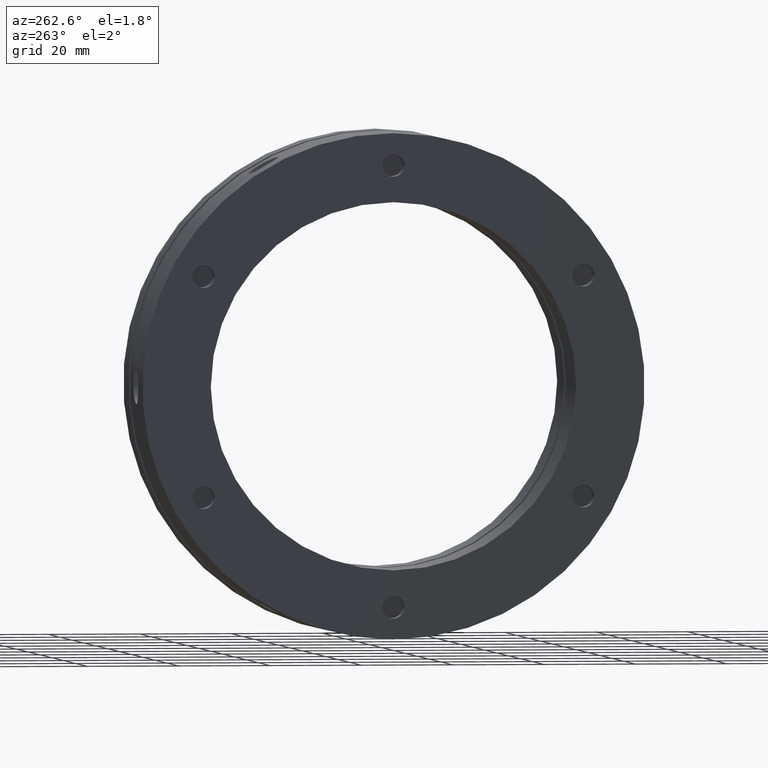
[diagram: clean part render]
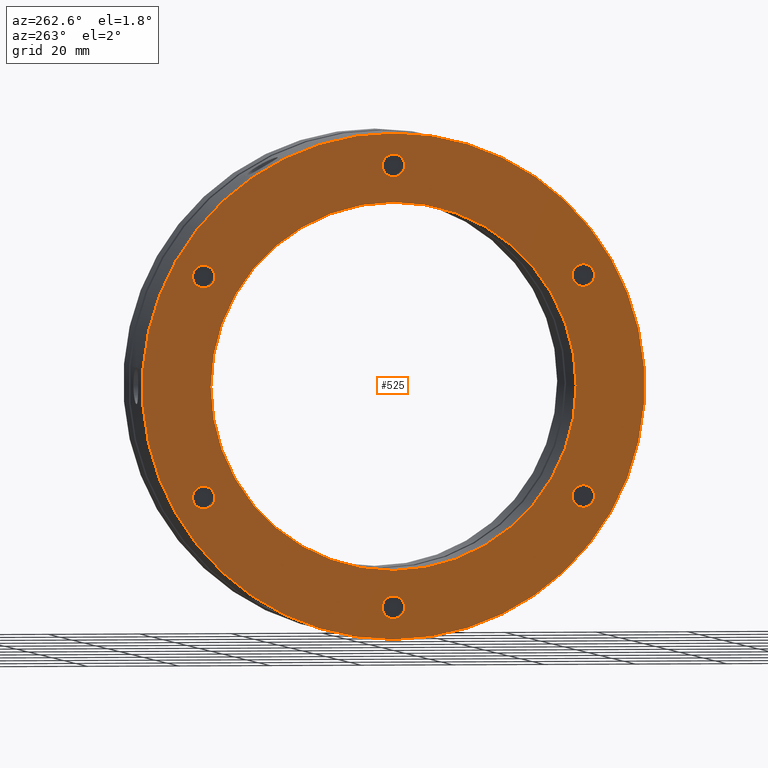
[diagram: same view with one face highlighted and labeled with its STEP entity id]
A machine part, auxiliary view. The second image highlights one B-rep face of the part: STEP entity #525.
In plain terms, the highlighted planar face has unit normal (-1, 0, 0).
Its self-contained STEP definition (entity closure, byte-faithful):
#6 = VERTEX_POINT ( 'NONE', #4715 ) ;
#7 = VERTEX_POINT ( 'NONE', #4704 ) ;
#10 = VERTEX_POINT ( 'NONE', #4707 ) ;
#12 = VERTEX_POINT ( 'NONE', #4722 ) ;
#13 = VERTEX_POINT ( 'NONE', #4702 ) ;
#17 = VERTEX_POINT ( 'NONE', #4698 ) ;
#19 = VERTEX_POINT ( 'NONE', #4699 ) ;
#26 = VERTEX_POINT ( 'NONE', #4708 ) ;
#28 = VERTEX_POINT ( 'NONE', #4713 ) ;
#32 = VERTEX_POINT ( 'NONE', #4729 ) ;
#37 = VERTEX_POINT ( 'NONE', #4734 ) ;
#40 = VERTEX_POINT ( 'NONE', #4737 ) ;
#51 = VERTEX_POINT ( 'NONE', #4748 ) ;
#57 = VERTEX_POINT ( 'NONE', #4753 ) ;
#63 = VERTEX_POINT ( 'NONE', #4759 ) ;
#66 = VERTEX_POINT ( 'NONE', #4762 ) ;
#222 = EDGE_CURVE ( 'NONE', #7, #6, #2558, .T. ) ;
#226 = EDGE_CURVE ( 'NONE', #13, #12, #2564, .T. ) ;
#234 = EDGE_CURVE ( 'NONE', #66, #63, #2574, .T. ) ;
#247 = EDGE_CURVE ( 'NONE', #37, #32, #2594, .T. ) ;
#291 = AXIS2_PLACEMENT_3D ( 'NONE', #3049, #3050, #3051 ) ;
#296 = AXIS2_PLACEMENT_3D ( 'NONE', #3020, #3021, #3022 ) ;
#300 = AXIS2_PLACEMENT_3D ( 'NONE', #2998, #2999, #3000 ) ;
#303 = AXIS2_PLACEMENT_3D ( 'NONE', #4803, #4514, #4512 ) ;
#319 = EDGE_CURVE ( 'NONE', #19, #17, #2668, .T. ) ;
#364 = EDGE_CURVE ( 'NONE', #57, #10, #2738, .T. ) ;
#370 = EDGE_CURVE ( 'NONE', #40, #28, #2743, .T. ) ;
#385 = EDGE_CURVE ( 'NONE', #51, #26, #2758, .T. ) ;
#386 = EDGE_CURVE ( 'NONE', #63, #66, #2752, .T. ) ;
#388 = EDGE_CURVE ( 'NONE', #32, #37, #2761, .T. ) ;
#389 = EDGE_CURVE ( 'NONE', #17, #19, #2762, .T. ) ;
#390 = EDGE_CURVE ( 'NONE', #12, #13, #2763, .T. ) ;
#391 = EDGE_CURVE ( 'NONE', #6, #7, #2764, .T. ) ;
#525 = ADVANCED_FACE ( 'NONE', ( #702, #706, #703, #697, #704, #707, #708, #709 ), #3888, .T. ) ;
#697 = FACE_BOUND ( 'NONE', #2389, .T. ) ;
#702 = FACE_BOUND ( 'NONE', #2385, .T. ) ;
#703 = FACE_BOUND ( 'NONE', #2388, .T. ) ;
#704 = FACE_BOUND ( 'NONE', #2390, .T. ) ;
#706 = FACE_BOUND ( 'NONE', #2391, .T. ) ;
#707 = FACE_BOUND ( 'NONE', #2384, .T. ) ;
#708 = FACE_BOUND ( 'NONE', #2383, .T. ) ;
#709 = FACE_OUTER_BOUND ( 'NONE', #2382, .T. ) ;
#977 = CIRCLE ( 'NONE', #4593, 55.00000000000000000 ) ;
#998 = CIRCLE ( 'NONE', #2997, 40.00000000000000000 ) ;
#1006 = CIRCLE ( 'NONE', #2994, 2.458500000000002600 ) ;
#1645 = CARTESIAN_POINT ( 'NONE',  ( -1.734723475976807100E-014, 0.0000000000000000000, 0.0000000000000000000 ) ) ;
#1646 = DIRECTION ( 'NONE',  ( 1.000000000000000000, 0.0000000000000000000, 0.0000000000000000000 ) ) ;
#1647 = DIRECTION ( 'NONE',  ( 0.0000000000000000000, 0.0000000000000000000, -1.000000000000000000 ) ) ;
#1809 = CARTESIAN_POINT ( 'NONE',  ( -1.040834085586084300E-014, 0.0000000000000000000, 0.0000000000000000000 ) ) ;
#1810 = DIRECTION ( 'NONE',  ( 1.000000000000000000, 0.0000000000000000000, 0.0000000000000000000 ) ) ;
#1811 = DIRECTION ( 'NONE',  ( 0.0000000000000000000, 0.0000000000000000000, -1.000000000000000000 ) ) ;
#1824 = CARTESIAN_POINT ( 'NONE',  ( -1.387778780781445700E-014, 0.0000000000000000000, 48.00000000000003600 ) ) ;
#1825 = DIRECTION ( 'NONE',  ( 1.000000000000000000, -0.0000000000000000000, -0.0000000000000000000 ) ) ;
#1826 = DIRECTION ( 'NONE',  ( 0.0000000000000000000, 0.0000000000000000000, 1.000000000000000000 ) ) ;
#2124 = ORIENTED_EDGE ( 'NONE', *, *, #364, .F. ) ;
#2125 = ORIENTED_EDGE ( 'NONE', *, *, #3416, .F. ) ;
#2126 = ORIENTED_EDGE ( 'NONE', *, *, #391, .T. ) ;
#2127 = ORIENTED_EDGE ( 'NONE', *, *, #222, .T. ) ;
#2128 = ORIENTED_EDGE ( 'NONE', *, *, #390, .T. ) ;
#2129 = ORIENTED_EDGE ( 'NONE', *, *, #226, .T. ) ;
#2131 = ORIENTED_EDGE ( 'NONE', *, *, #389, .T. ) ;
#2132 = ORIENTED_EDGE ( 'NONE', *, *, #319, .T. ) ;
#2133 = ORIENTED_EDGE ( 'NONE', *, *, #388, .T. ) ;
#2134 = ORIENTED_EDGE ( 'NONE', *, *, #247, .T. ) ;
#2135 = ORIENTED_EDGE ( 'NONE', *, *, #386, .T. ) ;
#2136 = ORIENTED_EDGE ( 'NONE', *, *, #234, .T. ) ;
#2137 = ORIENTED_EDGE ( 'NONE', *, *, #385, .T. ) ;
#2138 = ORIENTED_EDGE ( 'NONE', *, *, #3468, .T. ) ;
#2139 = ORIENTED_EDGE ( 'NONE', *, *, #3453, .T. ) ;
#2140 = ORIENTED_EDGE ( 'NONE', *, *, #370, .T. ) ;
#2208 = AXIS2_PLACEMENT_3D ( 'NONE', #3330, #3331, #3333 ) ;
#2215 = AXIS2_PLACEMENT_3D ( 'NONE', #3511, #3512, #3513 ) ;
#2255 = AXIS2_PLACEMENT_3D ( 'NONE', #3559, #3560, #3561 ) ;
#2256 = AXIS2_PLACEMENT_3D ( 'NONE', #3556, #3557, #3558 ) ;
#2269 = AXIS2_PLACEMENT_3D ( 'NONE', #3196, #3197, #3198 ) ;
#2382 = EDGE_LOOP ( 'NONE', ( #2125, #2124 ) ) ;
#2383 = EDGE_LOOP ( 'NONE', ( #2127, #2126 ) ) ;
#2384 = EDGE_LOOP ( 'NONE', ( #2129, #2128 ) ) ;
#2385 = EDGE_LOOP ( 'NONE', ( #2140, #2139 ) ) ;
#2388 = EDGE_LOOP ( 'NONE', ( #2136, #2135 ) ) ;
#2389 = EDGE_LOOP ( 'NONE', ( #2134, #2133 ) ) ;
#2390 = EDGE_LOOP ( 'NONE', ( #2132, #2131 ) ) ;
#2391 = EDGE_LOOP ( 'NONE', ( #2138, #2137 ) ) ;
#2558 = CIRCLE ( 'NONE', #303, 2.458500000000002600 ) ;
#2564 = CIRCLE ( 'NONE', #300, 2.458499999999999000 ) ;
#2574 = CIRCLE ( 'NONE', #296, 2.458499999999999000 ) ;
#2594 = CIRCLE ( 'NONE', #291, 2.458499999999999000 ) ;
#2668 = CIRCLE ( 'NONE', #2269, 2.458500000000002600 ) ;
#2738 = CIRCLE ( 'NONE', #2208, 55.00000000000000000 ) ;
#2743 = CIRCLE ( 'NONE', #2215, 40.00000000000000000 ) ;
#2752 = CIRCLE ( 'NONE', #2255, 2.458499999999999000 ) ;
#2758 = CIRCLE ( 'NONE', #2256, 2.458500000000002600 ) ;
#2761 = CIRCLE ( 'NONE', #4587, 2.458499999999999000 ) ;
#2762 = CIRCLE ( 'NONE', #4586, 2.458500000000002600 ) ;
#2763 = CIRCLE ( 'NONE', #4585, 2.458499999999999000 ) ;
#2764 = CIRCLE ( 'NONE', #4584, 2.458500000000002600 ) ;
#2994 = AXIS2_PLACEMENT_3D ( 'NONE', #1824, #1825, #1826 ) ;
#2997 = AXIS2_PLACEMENT_3D ( 'NONE', #1809, #1810, #1811 ) ;
#2998 = CARTESIAN_POINT ( 'NONE',  ( -1.387778780781445700E-014, 41.56921938165307800, -24.00000000000003900 ) ) ;
#2999 = DIRECTION ( 'NONE',  ( 1.000000000000000000, -0.0000000000000000000, -0.0000000000000000000 ) ) ;
#3000 = DIRECTION ( 'NONE',  ( 0.0000000000000000000, 0.0000000000000000000, 1.000000000000000000 ) ) ;
#3020 = CARTESIAN_POINT ( 'NONE',  ( -1.387778780781445700E-014, -41.56921938165308500, 24.00000000000002100 ) ) ;
#3021 = DIRECTION ( 'NONE',  ( 1.000000000000000000, -0.0000000000000000000, -0.0000000000000000000 ) ) ;
#3022 = DIRECTION ( 'NONE',  ( 0.0000000000000000000, 0.0000000000000000000, 1.000000000000000000 ) ) ;
#3049 = CARTESIAN_POINT ( 'NONE',  ( -1.387778780781445700E-014, -41.56921938165309200, -24.00000000000000400 ) ) ;
#3050 = DIRECTION ( 'NONE',  ( 1.000000000000000000, -0.0000000000000000000, -0.0000000000000000000 ) ) ;
#3051 = DIRECTION ( 'NONE',  ( 0.0000000000000000000, 0.0000000000000000000, 1.000000000000000000 ) ) ;
#3196 = CARTESIAN_POINT ( 'NONE',  ( -1.387778780781445700E-014, -8.881783999999999800E-015, -48.00000000000003600 ) ) ;
#3197 = DIRECTION ( 'NONE',  ( 1.000000000000000000, -0.0000000000000000000, -0.0000000000000000000 ) ) ;
#3198 = DIRECTION ( 'NONE',  ( 0.0000000000000000000, 0.0000000000000000000, 1.000000000000000000 ) ) ;
#3330 = CARTESIAN_POINT ( 'NONE',  ( -1.734723475976807100E-014, 0.0000000000000000000, 0.0000000000000000000 ) ) ;
#3331 = DIRECTION ( 'NONE',  ( 1.000000000000000000, 0.0000000000000000000, 0.0000000000000000000 ) ) ;
#3333 = DIRECTION ( 'NONE',  ( 0.0000000000000000000, 0.0000000000000000000, -1.000000000000000000 ) ) ;
#3416 = EDGE_CURVE ( 'NONE', #10, #57, #977, .T. ) ;
#3453 = EDGE_CURVE ( 'NONE', #28, #40, #998, .T. ) ;
#3468 = EDGE_CURVE ( 'NONE', #26, #51, #1006, .T. ) ;
#3511 = CARTESIAN_POINT ( 'NONE',  ( -1.040834085586084300E-014, 0.0000000000000000000, 0.0000000000000000000 ) ) ;
#3512 = DIRECTION ( 'NONE',  ( 1.000000000000000000, 0.0000000000000000000, 0.0000000000000000000 ) ) ;
#3513 = DIRECTION ( 'NONE',  ( 0.0000000000000000000, 0.0000000000000000000, -1.000000000000000000 ) ) ;
#3556 = CARTESIAN_POINT ( 'NONE',  ( -1.387778780781445700E-014, 0.0000000000000000000, 48.00000000000003600 ) ) ;
#3557 = DIRECTION ( 'NONE',  ( 1.000000000000000000, -0.0000000000000000000, -0.0000000000000000000 ) ) ;
#3558 = DIRECTION ( 'NONE',  ( 0.0000000000000000000, 0.0000000000000000000, 1.000000000000000000 ) ) ;
#3559 = CARTESIAN_POINT ( 'NONE',  ( -1.387778780781445700E-014, -41.56921938165308500, 24.00000000000002100 ) ) ;
#3560 = DIRECTION ( 'NONE',  ( 1.000000000000000000, -0.0000000000000000000, -0.0000000000000000000 ) ) ;
#3561 = DIRECTION ( 'NONE',  ( 0.0000000000000000000, 0.0000000000000000000, 1.000000000000000000 ) ) ;
#3565 = CARTESIAN_POINT ( 'NONE',  ( -1.387778780781445700E-014, -41.56921938165309200, -24.00000000000000400 ) ) ;
#3566 = DIRECTION ( 'NONE',  ( 1.000000000000000000, -0.0000000000000000000, -0.0000000000000000000 ) ) ;
#3567 = DIRECTION ( 'NONE',  ( 0.0000000000000000000, 0.0000000000000000000, 1.000000000000000000 ) ) ;
#3568 = CARTESIAN_POINT ( 'NONE',  ( -1.387778780781445700E-014, -8.881783999999999800E-015, -48.00000000000003600 ) ) ;
#3569 = DIRECTION ( 'NONE',  ( 1.000000000000000000, -0.0000000000000000000, -0.0000000000000000000 ) ) ;
#3570 = DIRECTION ( 'NONE',  ( 0.0000000000000000000, 0.0000000000000000000, 1.000000000000000000 ) ) ;
#3571 = CARTESIAN_POINT ( 'NONE',  ( -1.387778780781445700E-014, 41.56921938165307800, -24.00000000000003900 ) ) ;
#3572 = DIRECTION ( 'NONE',  ( 1.000000000000000000, -0.0000000000000000000, -0.0000000000000000000 ) ) ;
#3573 = DIRECTION ( 'NONE',  ( 0.0000000000000000000, 0.0000000000000000000, 1.000000000000000000 ) ) ;
#3574 = CARTESIAN_POINT ( 'NONE',  ( -1.387778780781445700E-014, 41.56921938165311300, 23.99999999999998600 ) ) ;
#3575 = DIRECTION ( 'NONE',  ( 1.000000000000000000, -0.0000000000000000000, -0.0000000000000000000 ) ) ;
#3576 = DIRECTION ( 'NONE',  ( 0.0000000000000000000, 0.0000000000000000000, 1.000000000000000000 ) ) ;
#3881 = CARTESIAN_POINT ( 'NONE',  ( -1.455819000000000100E-014, 47.50000000000000000, 0.0000000000000000000 ) ) ;
#3883 = DIRECTION ( 'NONE',  ( -1.000000000000000000, 0.0000000000000000000, 0.0000000000000000000 ) ) ;
#3888 = PLANE ( 'NONE',  #4511 ) ;
#3890 = DIRECTION ( 'NONE',  ( 0.0000000000000000000, 0.0000000000000000000, 1.000000000000000000 ) ) ;
#4511 = AXIS2_PLACEMENT_3D ( 'NONE', #3881, #3883, #3890 ) ;
#4512 = DIRECTION ( 'NONE',  ( 0.0000000000000000000, 0.0000000000000000000, 1.000000000000000000 ) ) ;
#4514 = DIRECTION ( 'NONE',  ( 1.000000000000000000, -0.0000000000000000000, -0.0000000000000000000 ) ) ;
#4584 = AXIS2_PLACEMENT_3D ( 'NONE', #3574, #3575, #3576 ) ;
#4585 = AXIS2_PLACEMENT_3D ( 'NONE', #3571, #3572, #3573 ) ;
#4586 = AXIS2_PLACEMENT_3D ( 'NONE', #3568, #3569, #3570 ) ;
#4587 = AXIS2_PLACEMENT_3D ( 'NONE', #3565, #3566, #3567 ) ;
#4593 = AXIS2_PLACEMENT_3D ( 'NONE', #1645, #1646, #1647 ) ;
#4698 = CARTESIAN_POINT ( 'NONE',  ( -1.387778780781445700E-014, -8.580704584429623500E-015, -50.45850000000003600 ) ) ;
#4699 = CARTESIAN_POINT ( 'NONE',  ( -1.387778780781445700E-014, -8.881783999999999800E-015, -45.54150000000003500 ) ) ;
#4702 = CARTESIAN_POINT ( 'NONE',  ( -1.387778780781445700E-014, 41.56921938165307800, -21.54150000000003800 ) ) ;
#4704 = CARTESIAN_POINT ( 'NONE',  ( -1.387778780781445700E-014, 41.56921938165311300, 26.45849999999999000 ) ) ;
#4707 = CARTESIAN_POINT ( 'NONE',  ( -1.734723475976807100E-014, 0.0000000000000000000, -55.00000000000000000 ) ) ;
#4708 = CARTESIAN_POINT ( 'NONE',  ( -1.387778780781445700E-014, 0.0000000000000000000, 50.45850000000003600 ) ) ;
#4713 = CARTESIAN_POINT ( 'NONE',  ( -1.040834085586084300E-014, 4.898587196589413000E-015, 40.00000000000000000 ) ) ;
#4715 = CARTESIAN_POINT ( 'NONE',  ( -1.387778780781445700E-014, 41.56921938165311300, 21.54149999999998500 ) ) ;
#4722 = CARTESIAN_POINT ( 'NONE',  ( -1.387778780781445700E-014, 41.56921938165307800, -26.45850000000003600 ) ) ;
#4729 = CARTESIAN_POINT ( 'NONE',  ( -1.387778780781445700E-014, -41.56921938165309200, -26.45850000000000400 ) ) ;
#4734 = CARTESIAN_POINT ( 'NONE',  ( -1.387778780781445700E-014, -41.56921938165309200, -21.54150000000000600 ) ) ;
#4737 = CARTESIAN_POINT ( 'NONE',  ( -1.040834085586084300E-014, 0.0000000000000000000, -40.00000000000000000 ) ) ;
#4748 = CARTESIAN_POINT ( 'NONE',  ( -1.387778780781445700E-014, 3.010794155703764200E-016, 45.54150000000003500 ) ) ;
#4753 = CARTESIAN_POINT ( 'NONE',  ( -1.734723475976807100E-014, 6.735557395310442600E-015, 55.00000000000000000 ) ) ;
#4759 = CARTESIAN_POINT ( 'NONE',  ( -1.387778780781445700E-014, -41.56921938165308500, 21.54150000000002400 ) ) ;
#4762 = CARTESIAN_POINT ( 'NONE',  ( -1.387778780781445700E-014, -41.56921938165308500, 26.45850000000001900 ) ) ;
#4803 = CARTESIAN_POINT ( 'NONE',  ( -1.387778780781445700E-014, 41.56921938165311300, 23.99999999999998600 ) ) ;